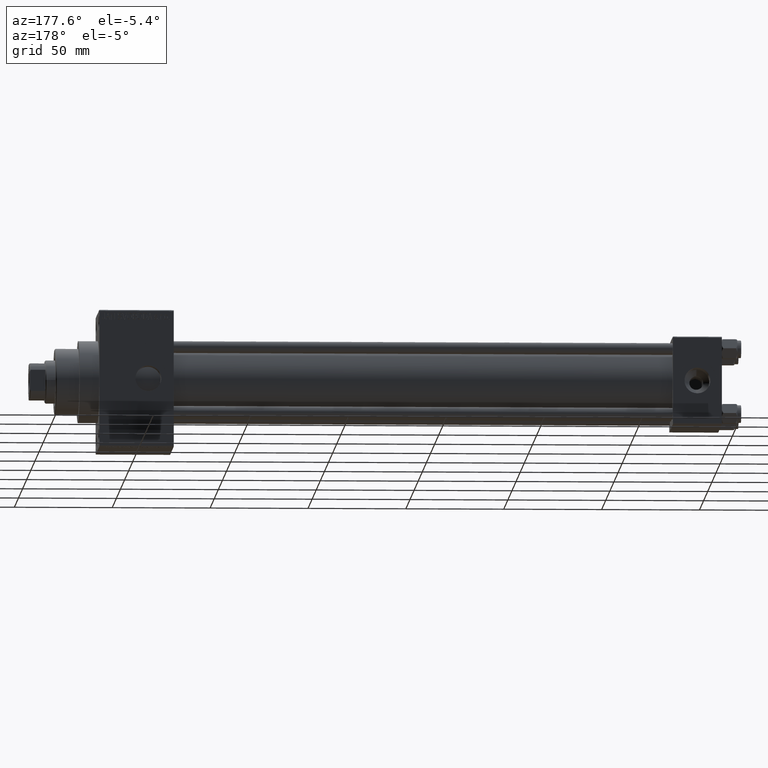
[diagram: clean part render]
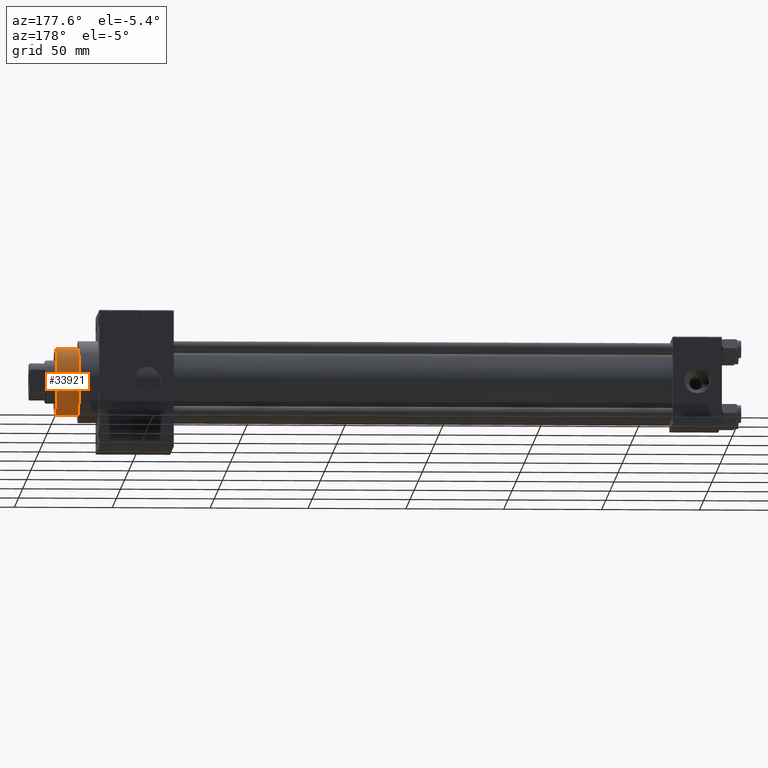
[diagram: same view with one face highlighted and labeled with its STEP entity id]
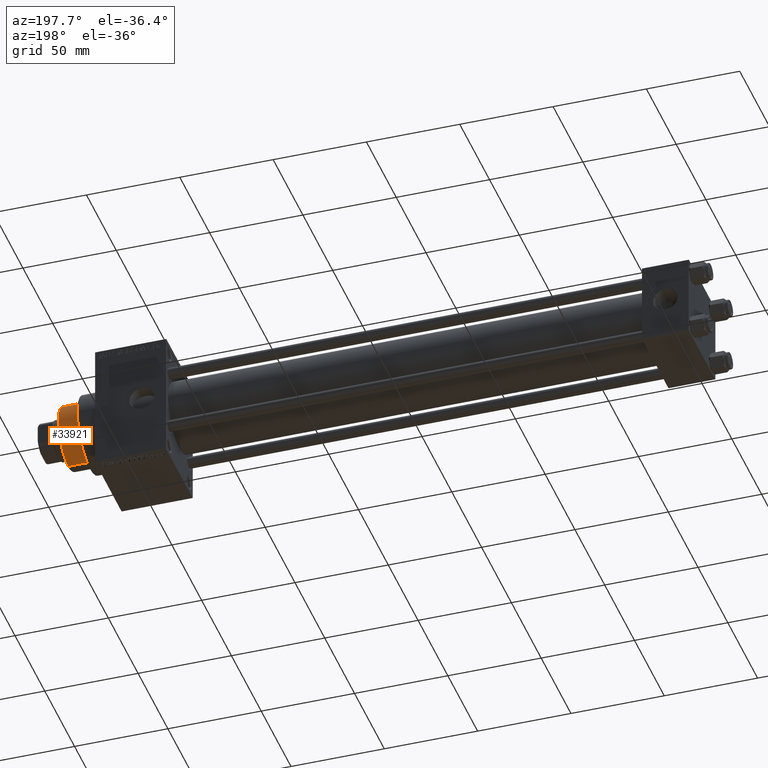
[diagram: same view with one face highlighted and labeled with its STEP entity id]
A machine part, auxiliary view. The second image highlights one B-rep face of the part: STEP entity #33921.
A second angle (auxiliary view) of the same face is appended — the face is thin or edge-on in the first view.
In plain terms, the highlighted cylindrical surface (edge-blend (fillet) strip) has radius 17 mm, axis along (-1, 0, 0).
Its self-contained STEP definition (entity closure, byte-faithful):
#1658 = DIRECTION ( 'NONE',  ( -0.000000000000000000, -0.000000000000000000, -1.000000000000000000 ) ) ;
#1790 = CIRCLE ( 'NONE', #35055, 17.00000000000000000 ) ;
#3233 = VERTEX_POINT ( 'NONE', #41295 ) ;
#4126 = DIRECTION ( 'NONE',  ( 0.000000000000000000, 0.000000000000000000, 1.000000000000000000 ) ) ;
#6868 = CARTESIAN_POINT ( 'NONE',  ( 0.000000000000000000, 0.000000000000000000, 55.26000000000000512 ) ) ;
#7248 = CARTESIAN_POINT ( 'NONE',  ( -17.00000000000000000, 0.000000000000000000, 55.26000000000000512 ) ) ;
#9131 = CARTESIAN_POINT ( 'NONE',  ( 17.00000000000000000, 2.081899558550500280E-15, 54.76000000000001222 ) ) ;
#11939 = AXIS2_PLACEMENT_3D ( 'NONE', #48665, #29309, #14669 ) ;
#12053 = CARTESIAN_POINT ( 'NONE',  ( 0.000000000000000000, 0.000000000000000000, 43.25999999999999801 ) ) ;
#12551 = ORIENTED_EDGE ( 'NONE', *, *, #12948, .T. ) ;
#12948 = EDGE_CURVE ( 'NONE', #27880, #3233, #45449, .T. ) ;
#14669 = DIRECTION ( 'NONE',  ( 1.000000000000000000, 0.000000000000000000, 0.000000000000000000 ) ) ;
#15310 = ORIENTED_EDGE ( 'NONE', *, *, #37831, .F. ) ;
#17381 = VECTOR ( 'NONE', #1658, 1000.000000000000000 ) ;
#18010 = VERTEX_POINT ( 'NONE', #38583 ) ;
#22372 = DIRECTION ( 'NONE',  ( -0.000000000000000000, -0.000000000000000000, -1.000000000000000000 ) ) ;
#22489 = DIRECTION ( 'NONE',  ( -0.000000000000000000, -0.000000000000000000, -1.000000000000000000 ) ) ;
#22729 = DIRECTION ( 'NONE',  ( -1.000000000000000000, 0.000000000000000000, 0.000000000000000000 ) ) ;
#24712 = LINE ( 'NONE', #43093, #17381 ) ;
#25541 = VERTEX_POINT ( 'NONE', #9131 ) ;
#27880 = VERTEX_POINT ( 'NONE', #44856 ) ;
#29309 = DIRECTION ( 'NONE',  ( 0.000000000000000000, 0.000000000000000000, -1.000000000000000000 ) ) ;
#30657 = DIRECTION ( 'NONE',  ( 1.000000000000000000, 0.000000000000000000, 0.000000000000000000 ) ) ;
#33921 = ADVANCED_FACE ( 'NONE', ( #34394 ), #45329, .T. ) ;
#34394 = FACE_OUTER_BOUND ( 'NONE', #36493, .T. ) ;
#35055 = AXIS2_PLACEMENT_3D ( 'NONE', #12053, #4126, #30657 ) ;
#35477 = AXIS2_PLACEMENT_3D ( 'NONE', #6868, #22489, #22729 ) ;
#36493 = EDGE_LOOP ( 'NONE', ( #15310, #41640, #12551, #47478 ) ) ;
#37831 = EDGE_CURVE ( 'NONE', #25541, #18010, #24712, .T. ) ;
#38583 = CARTESIAN_POINT ( 'NONE',  ( 17.00000000000000000, 2.081899558550500280E-15, 43.25999999999999801 ) ) ;
#38726 = VECTOR ( 'NONE', #22372, 1000.000000000000000 ) ;
#38881 = CIRCLE ( 'NONE', #11939, 17.00000000000000000 ) ;
#40313 = EDGE_CURVE ( 'NONE', #25541, #27880, #38881, .T. ) ;
#41295 = CARTESIAN_POINT ( 'NONE',  ( -17.00000000000000000, 0.000000000000000000, 43.25999999999999801 ) ) ;
#41640 = ORIENTED_EDGE ( 'NONE', *, *, #40313, .T. ) ;
#43093 = CARTESIAN_POINT ( 'NONE',  ( 17.00000000000000000, 2.081899558550500280E-15, 55.26000000000000512 ) ) ;
#44413 = EDGE_CURVE ( 'NONE', #3233, #18010, #1790, .T. ) ;
#44856 = CARTESIAN_POINT ( 'NONE',  ( -17.00000000000000000, 0.000000000000000000, 54.76000000000001222 ) ) ;
#45329 = CYLINDRICAL_SURFACE ( 'NONE', #35477, 17.00000000000000000 ) ;
#45449 = LINE ( 'NONE', #7248, #38726 ) ;
#47478 = ORIENTED_EDGE ( 'NONE', *, *, #44413, .T. ) ;
#48665 = CARTESIAN_POINT ( 'NONE',  ( 0.000000000000000000, 0.000000000000000000, 54.76000000000001222 ) ) ;